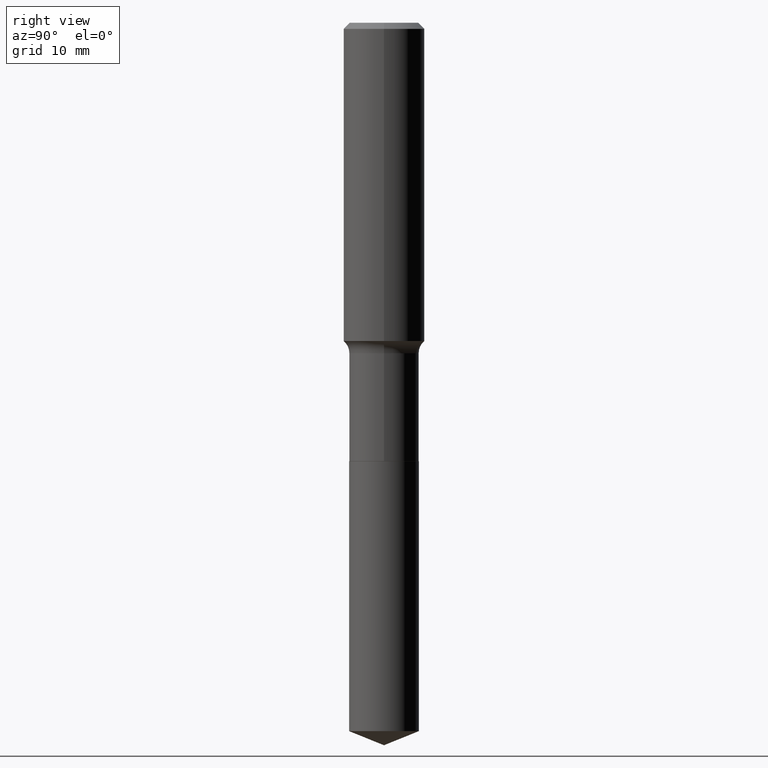
[diagram: clean part render]
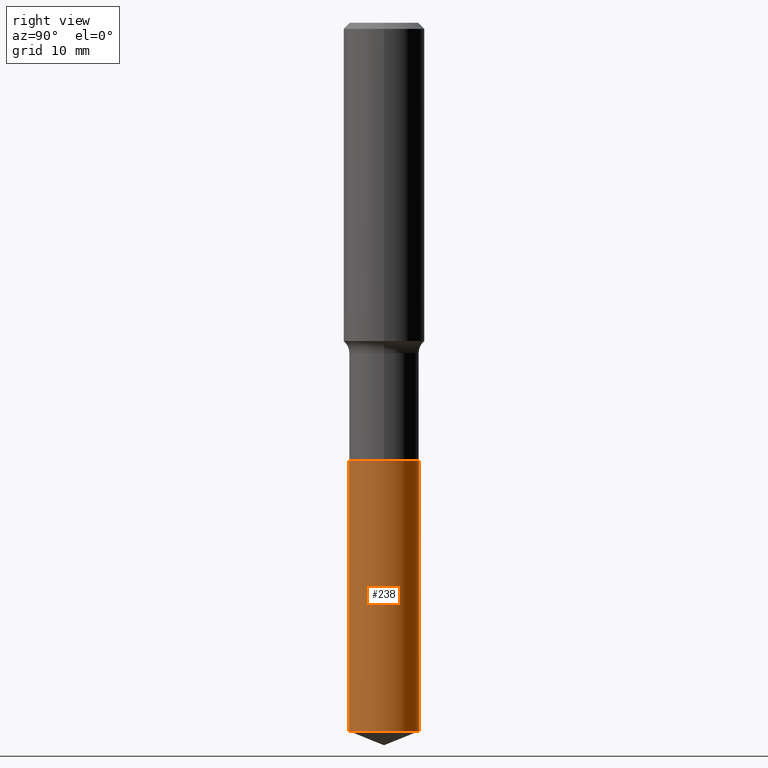
[diagram: same view with one face highlighted and labeled with its STEP entity id]
A machine part, right view. The second image highlights one B-rep face of the part: STEP entity #238.
In plain terms, the highlighted cylindrical surface (edge-blend (fillet) strip) has radius 4.3002 mm, axis along (-0, 0, 1).
Its self-contained STEP definition (entity closure, byte-faithful):
#4 = CARTESIAN_POINT ( 'NONE',  ( 1.202948851641933671E-15, 0.1692999999999926231, -2.125900000000000567 ) ) ;
#22 = AXIS2_PLACEMENT_3D ( 'NONE', #365, #231, #328 ) ;
#30 = VECTOR ( 'NONE', #157, 39.37007874015748143 ) ;
#47 = DIRECTION ( 'NONE',  ( -2.445359563184350382E-29, 3.491637781037997062E-15, 1.000000000000000000 ) ) ;
#82 = VERTEX_POINT ( 'NONE', #114 ) ;
#83 = ORIENTED_EDGE ( 'NONE', *, *, #278, .T. ) ;
#96 = DIRECTION ( 'NONE',  ( -2.445359563184350382E-29, 3.491637781037997457E-15, 1.000000000000000000 ) ) ;
#109 = EDGE_CURVE ( 'NONE', #343, #441, #237, .T. ) ;
#110 = ORIENTED_EDGE ( 'NONE', *, *, #109, .F. ) ;
#114 = CARTESIAN_POINT ( 'NONE',  ( 1.202948851641933277E-15, 0.1692999999999879879, -3.435498359966108861 ) ) ;
#117 = FACE_OUTER_BOUND ( 'NONE', #412, .T. ) ;
#130 = DIRECTION ( 'NONE',  ( -6.982962677686265922E-15, -1.000000000000000000, 3.227227399485248397E-15 ) ) ;
#132 = VECTOR ( 'NONE', #96, 39.37007874015748143 ) ;
#157 = DIRECTION ( 'NONE',  ( -2.445359563184350382E-29, 3.491637781037997457E-15, 1.000000000000000000 ) ) ;
#167 = DIRECTION ( 'NONE',  ( -6.982962677686265922E-15, -1.000000000000000000, 3.227227399485248397E-15 ) ) ;
#169 = CARTESIAN_POINT ( 'NONE',  ( 8.401261008542646974E-29, -1.199518328988970502E-14, -3.435498359966108417 ) ) ;
#172 = VERTEX_POINT ( 'NONE', #220 ) ;
#180 = ORIENTED_EDGE ( 'NONE', *, *, #234, .T. ) ;
#203 = CARTESIAN_POINT ( 'NONE',  ( 1.202948851641901525E-15, 0.1692999999999926231, -2.125900000000000567 ) ) ;
#220 = CARTESIAN_POINT ( 'NONE',  ( -1.182215581332200604E-15, -0.1693000000000119687, -3.435498359966107529 ) ) ;
#231 = DIRECTION ( 'NONE',  ( -2.445359563184350382E-29, 3.491637781037997062E-15, 1.000000000000000000 ) ) ;
#234 = EDGE_CURVE ( 'NONE', #172, #82, #484, .T. ) ;
#237 = CIRCLE ( 'NONE', #436, 0.1693000000000000338 ) ;
#238 = ADVANCED_FACE ( 'NONE', ( #117 ), #430, .T. ) ;
#240 = LINE ( 'NONE', #203, #30 ) ;
#278 = EDGE_CURVE ( 'NONE', #82, #441, #240, .T. ) ;
#280 = CARTESIAN_POINT ( 'NONE',  ( 5.198822135068982087E-29, -7.422540178246643119E-15, -2.125899999999999679 ) ) ;
#285 = LINE ( 'NONE', #428, #132 ) ;
#328 = DIRECTION ( 'NONE',  ( -6.982962677686265922E-15, -1.000000000000000000, 3.227227399485248397E-15 ) ) ;
#343 = VERTEX_POINT ( 'NONE', #401 ) ;
#351 = AXIS2_PLACEMENT_3D ( 'NONE', #169, #459, #130 ) ;
#365 = CARTESIAN_POINT ( 'NONE',  ( 5.198822135068982087E-29, -7.422540178246643119E-15, -2.125899999999999679 ) ) ;
#380 = EDGE_CURVE ( 'NONE', #172, #343, #285, .T. ) ;
#401 = CARTESIAN_POINT ( 'NONE',  ( -1.182215581332233145E-15, -0.1693000000000074445, -2.125899999999999235 ) ) ;
#402 = ORIENTED_EDGE ( 'NONE', *, *, #380, .F. ) ;
#412 = EDGE_LOOP ( 'NONE', ( #180, #83, #110, #402 ) ) ;
#428 = CARTESIAN_POINT ( 'NONE',  ( -1.182215581332233145E-15, -0.1693000000000074445, -2.125899999999999235 ) ) ;
#430 = CYLINDRICAL_SURFACE ( 'NONE', #22, 0.1693000000000000338 ) ;
#436 = AXIS2_PLACEMENT_3D ( 'NONE', #280, #47, #167 ) ;
#441 = VERTEX_POINT ( 'NONE', #4 ) ;
#459 = DIRECTION ( 'NONE',  ( -2.445359563184350382E-29, 3.491637781037997062E-15, 1.000000000000000000 ) ) ;
#484 = CIRCLE ( 'NONE', #351, 0.1693000000000000338 ) ;